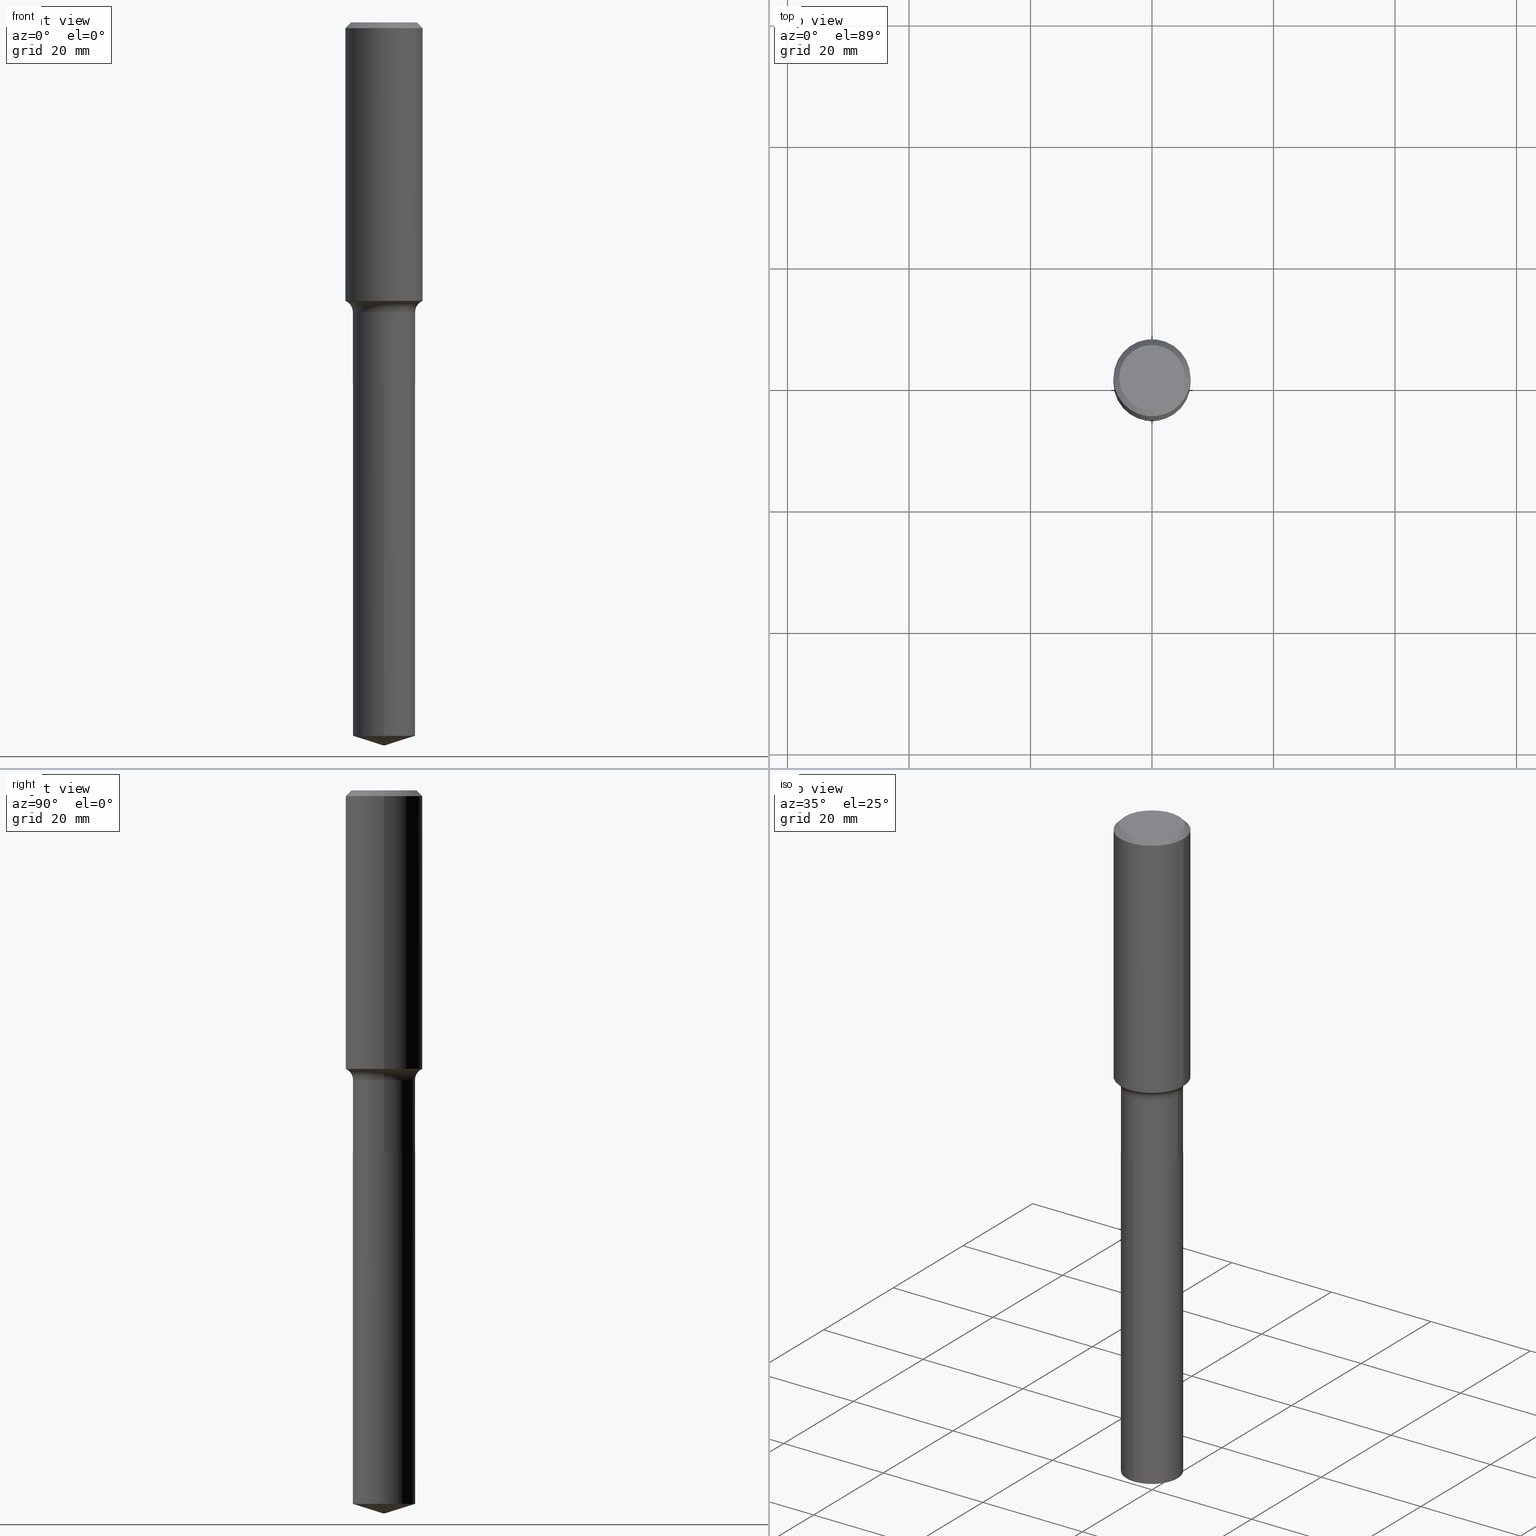
[diagram: canonical four-view strip — front | top / right | iso, engineering-drawing reading convention]
A machine part, canonical four-view strip (front | top / right | iso — engineering-drawing reading convention). The complete STEP part file that produces these views, byte-faithful:
ISO-10303-21;
HEADER;
FILE_DESCRIPTION (( 'STEP AP203' ),
    '1' );
FILE_NAME ('52353.STEP',
    '2024-04-19T13:53:20',
    ( '' ),
    ( '' ),
    'SwSTEP 2.0',
    'SolidWorks 2023',
    '' );
FILE_SCHEMA (( 'CONFIG_CONTROL_DESIGN' ));
ENDSEC;

DATA;
#1 = ORIENTED_EDGE ( 'NONE', *, *, #249, .F. ) ;
#2 = EDGE_LOOP ( 'NONE', ( #298, #86, #405, #138 ) ) ;
#3 = CIRCLE ( 'NONE', #341, 0.07800000000000009703 ) ;
#4 = APPROVAL_DATE_TIME ( #409, #157 ) ;
#5 = EDGE_LOOP ( 'NONE', ( #305, #380, #158, #403 ) ) ;
#6 = VECTOR ( 'NONE', #204, 39.37007874015748143 ) ;
#7 = CARTESIAN_POINT ( 'NONE',  ( -0.2500000000000002776, -4.525417829077741609E-15, -1.804900000000000171 ) ) ;
#8 = ADVANCED_FACE ( 'NONE', ( #311 ), #357, .T. ) ;
#9 = DIRECTION ( 'NONE',  ( -2.445468806185136597E-29, 3.491481338843145583E-15, 1.000000000000000000 ) ) ;
#10 = FACE_OUTER_BOUND ( 'NONE', #68, .T. ) ;
#11 = CARTESIAN_POINT ( 'NONE',  ( -8.480400482500368832E-28, 1.211095576396062497E-13, 34.68257874015748143 ) ) ;
#12 = CIRCLE ( 'NONE', #207, 0.2500000000000000000 ) ;
#13 = CIRCLE ( 'NONE', #89, 0.2020000000000000129 ) ;
#14 = ADVANCED_FACE ( 'NONE', ( #10 ), #444, .F. ) ;
#15 = DIRECTION ( 'NONE',  ( -6.982962677686266711E-15, -1.000000000000000000, 4.057199990590489741E-15 ) ) ;
#16 = CARTESIAN_POINT ( 'NONE',  ( 4.589900402328883540E-29, -6.553161324874701209E-15, -1.876900000000000457 ) ) ;
#17 = APPLICATION_PROTOCOL_DEFINITION ( 'international standard', 'config_control_design', 1994, #154 ) ;
#18 = DIRECTION ( 'NONE',  ( -1.000000000000000000, 7.105427357601001859E-15, 0.000000000000000000 ) ) ;
#19 = CARTESIAN_POINT ( 'NONE',  ( -8.480400482500368832E-28, 1.211095576396062497E-13, 34.68257874015748143 ) ) ;
#20 = DIRECTION ( 'NONE',  ( -6.982962677686266711E-15, -1.000000000000000000, 3.491481338843145583E-15 ) ) ;
#21 = CARTESIAN_POINT ( 'NONE',  ( -0.2500000000000001110, 1.776356839400251254E-15, -1.229733772563727006E-29 ) ) ;
#22 = ADVANCED_FACE ( 'NONE', ( #57 ), #455, .T. ) ;
#23 = CONICAL_SURFACE ( 'NONE', #143, 0.2500000000000000000, 0.7853981633974447263 ) ;
#24 = VERTEX_POINT ( 'NONE', #342 ) ;
#25 = DIRECTION ( 'NONE',  ( -6.982962677686265922E-15, -1.000000000000000000, 3.500519750498723365E-15 ) ) ;
#26 = PERSON_AND_ORGANIZATION ( #489, #332 ) ;
#27 = DIRECTION ( 'NONE',  ( 2.445167391470956759E-29, -3.491912981869310668E-15, -1.000000000000000000 ) ) ;
#28 = CARTESIAN_POINT ( 'NONE',  ( 5.726065209682497413E-29, -8.175303554901225434E-15, -2.341500000000000359 ) ) ;
#29 = ORIENTED_EDGE ( 'NONE', *, *, #274, .F. ) ;
#30 = PERSON_AND_ORGANIZATION_ROLE ( 'creator' ) ;
#31 = CARTESIAN_POINT ( 'NONE',  ( 0.2015000000000000124, -9.582370534455009376E-15, -2.341500000000000359 ) ) ;
#32 = CARTESIAN_POINT ( 'NONE',  ( 4.589900402328883540E-29, -6.553161324874701209E-15, -1.876900000000000457 ) ) ;
#33 =( LENGTH_UNIT ( ) NAMED_UNIT ( * ) SI_UNIT ( $, .METRE. ) );
#34 = EDGE_LOOP ( 'NONE', ( #394, #201, #100, #264 ) ) ;
#35 = CIRCLE ( 'NONE', #308, 0.2020000000000000129 ) ;
#36 = EDGE_CURVE ( 'NONE', #360, #81, #174, .T. ) ;
#37 = DIRECTION ( 'NONE',  ( -2.445468806185136597E-29, 3.491481338843145583E-15, 1.000000000000000000 ) ) ;
#38 = ADVANCED_FACE ( 'NONE', ( #203 ), #278, .F. ) ;
#39 = VERTEX_POINT ( 'NONE', #485 ) ;
#40 = VECTOR ( 'NONE', #317, 39.37007874015747433 ) ;
#41 = VECTOR ( 'NONE', #146, 39.37007874015748143 ) ;
#42 = EDGE_LOOP ( 'NONE', ( #259, #232, #339, #368 ) ) ;
#43 = EDGE_CURVE ( 'NONE', #360, #268, #3, .T. ) ;
#44 = DIRECTION ( 'NONE',  ( 1.000000000000000000, -6.982962677686269866E-15, 0.000000000000000000 ) ) ;
#45 = CIRCLE ( 'NONE', #306, 0.2500000000000000000 ) ;
#46 = EDGE_LOOP ( 'NONE', ( #177, #415, #224, #490 ) ) ;
#47 = CC_DESIGN_DATE_AND_TIME_ASSIGNMENT ( #364, #387, ( #122 ) ) ;
#48 = CARTESIAN_POINT ( 'NONE',  ( 9.170508023194327749E-31, -1.309305502066188813E-16, -0.03750000000000026923 ) ) ;
#49 = LINE ( 'NONE', #250, #64 ) ;
#50 = PRODUCT ( '52353', '52353', '', ( #130 ) ) ;
#51 = CIRCLE ( 'NONE', #331, 0.2124999999999999944 ) ;
#52 = VECTOR ( 'NONE', #223, 39.37007874015748143 ) ;
#53 = FACE_OUTER_BOUND ( 'NONE', #442, .T. ) ;
#54 = CARTESIAN_POINT ( 'NONE',  ( 0.2500000000000002776, -8.047515337899561907E-15, -1.804900000000000171 ) ) ;
#55 = FACE_OUTER_BOUND ( 'NONE', #42, .T. ) ;
#56 = COORDINATED_UNIVERSAL_TIME_OFFSET ( 5, 0, .BEHIND. ) ;
#57 = FACE_OUTER_BOUND ( 'NONE', #74, .T. ) ;
#58 = EDGE_CURVE ( 'NONE', #181, #70, #482, .T. ) ;
#59 = ORIENTED_EDGE ( 'NONE', *, *, #369, .F. ) ;
#60 = DIRECTION ( 'NONE',  ( 1.000000000000000000, -6.982962677686266711E-15, 4.876376119033268190E-29 ) ) ;
#61 = APPROVAL_DATE_TIME ( #295, #155 ) ;
#62 = LINE ( 'NONE', #206, #102 ) ;
#63 = CARTESIAN_POINT ( 'NONE',  ( 4.413826648283553199E-29, -6.301774668477994440E-15, -1.804900000000000171 ) ) ;
#64 = VECTOR ( 'NONE', #247, 39.37007874015748143 ) ;
#65 = ORIENTED_EDGE ( 'NONE', *, *, #270, .T. ) ;
#66 = AXIS2_PLACEMENT_3D ( 'NONE', #398, #217, #180 ) ;
#67 = CARTESIAN_POINT ( 'NONE',  ( -0.2500000000000000000, 1.614810119214947796E-15, -0.03750000000000026923 ) ) ;
#68 = EDGE_LOOP ( 'NONE', ( #272, #234 ) ) ;
#69 = PERSON_AND_ORGANIZATION_ROLE ( 'classification_officer' ) ;
#70 = VERTEX_POINT ( 'NONE', #179 ) ;
#71 = CARTESIAN_POINT ( 'NONE',  ( 9.170508023194327749E-31, -1.309305502066188813E-16, -0.03750000000000026923 ) ) ;
#72 = CARTESIAN_POINT ( 'NONE',  ( 1.130669433001165338E-28, -1.614493023168768447E-14, -4.623809644646446060 ) ) ;
#73 = DIMENSIONAL_EXPONENTS ( 1.000000000000000000, 0.000000000000000000, 0.000000000000000000, 0.000000000000000000, 0.000000000000000000, 0.000000000000000000, 0.000000000000000000 ) ;
#74 = EDGE_LOOP ( 'NONE', ( #117, #328, #159, #226 ) ) ;
#75 = AXIS2_PLACEMENT_3D ( 'NONE', #63, #349, #293 ) ;
#76 = ORIENTED_EDGE ( 'NONE', *, *, #369, .T. ) ;
#77 = EDGE_CURVE ( 'NONE', #399, #268, #441, .T. ) ;
#78 = VECTOR ( 'NONE', #347, 39.37007874015748143 ) ;
#79 = AXIS2_PLACEMENT_3D ( 'NONE', #438, #400, #98 ) ;
#80 = CARTESIAN_POINT ( 'NONE',  ( 5.724842475279405733E-29, -8.173557814231804720E-15, -2.341000000000000192 ) ) ;
#81 = VERTEX_POINT ( 'NONE', #7 ) ;
#82 = CARTESIAN_POINT ( 'NONE',  ( 0.2124999999999999944, -1.651955437087975937E-15, 6.505936120481282700E-18 ) ) ;
#83 = DIRECTION ( 'NONE',  ( -2.445167391470956759E-29, 3.491912981869311063E-15, 1.000000000000000000 ) ) ;
#84 = EDGE_CURVE ( 'NONE', #399, #381, #300, .T. ) ;
#85 = CARTESIAN_POINT ( 'NONE',  ( 0.2500000000000000000, -1.876671219628185756E-15, -0.03750000000000026923 ) ) ;
#86 = ORIENTED_EDGE ( 'NONE', *, *, #463, .T. ) ;
#87 = DATE_AND_TIME ( #145, #280 ) ;
#88 = AXIS2_PLACEMENT_3D ( 'NONE', #389, #169, #99 ) ;
#89 = AXIS2_PLACEMENT_3D ( 'NONE', #205, #163, #358 ) ;
#90 = DIRECTION ( 'NONE',  ( -2.445167391470956759E-29, 3.491912981869311063E-15, 1.000000000000000000 ) ) ;
#91 = EDGE_CURVE ( 'NONE', #360, #244, #97, .T. ) ;
#92 = DIRECTION ( 'NONE',  ( -2.445468806185136597E-29, 3.491481338843145583E-15, 1.000000000000000000 ) ) ;
#93 = CARTESIAN_POINT ( 'NONE',  ( 0.000000000000000000, 0.000000000000000000, 0.000000000000000000 ) ) ;
#94 = ORIENTED_EDGE ( 'NONE', *, *, #345, .T. ) ;
#95 = CARTESIAN_POINT ( 'NONE',  ( -1.591006383764330940E-46, 2.271535455632768948E-32, 6.505936120470318766E-18 ) ) ;
#96 = COORDINATED_UNIVERSAL_TIME_OFFSET ( 5, 0, .BEHIND. ) ;
#97 = LINE ( 'NONE', #466, #373 ) ;
#98 = DIRECTION ( 'NONE',  ( -1.000000000000000000, 6.982962677686266711E-15, 0.000000000000000000 ) ) ;
#99 = DIRECTION ( 'NONE',  ( 1.000000000000000000, -6.982962677686266711E-15, 0.000000000000000000 ) ) ;
#100 = ORIENTED_EDGE ( 'NONE', *, *, #182, .T. ) ;
#101 = DIRECTION ( 'NONE',  ( -6.659769872151628144E-15, -0.9537169507482261555, 0.3007057995042753396 ) ) ;
#102 = VECTOR ( 'NONE', #126, 39.37007874015748143 ) ;
#103 = SECURITY_CLASSIFICATION_LEVEL ( 'unclassified' ) ;
#104 = PRODUCT_DEFINITION ( 'UNKNOWN', '', #188, #237 ) ;
#105 = ORIENTED_EDGE ( 'NONE', *, *, #351, .T. ) ;
#106 = AXIS2_PLACEMENT_3D ( 'NONE', #437, #116, #131 ) ;
#107 = VERTEX_POINT ( 'NONE', #261 ) ;
#108 = CARTESIAN_POINT ( 'NONE',  ( -0.2019999999999999851, 1.435296326235402270E-15, -9.936248882314910004E-30 ) ) ;
#109 = AXIS2_PLACEMENT_3D ( 'NONE', #397, #9, #44 ) ;
#110 = EDGE_CURVE ( 'NONE', #381, #399, #152, .T. ) ;
#111 = AXIS2_PLACEMENT_3D ( 'NONE', #93, #285, #175 ) ;
#112 = CARTESIAN_POINT ( 'NONE',  ( -0.2500000000000000000, -1.439995769942055506E-15, -0.03750000000000026923 ) ) ;
#113 = EDGE_LOOP ( 'NONE', ( #59, #105, #462, #29 ) ) ;
#114 = CIRCLE ( 'NONE', #121, 0.2015000000000000124 ) ;
#115 = EDGE_CURVE ( 'NONE', #487, #399, #62, .T. ) ;
#116 = DIRECTION ( 'NONE',  ( -2.445468806185136597E-29, 3.491481338843145583E-15, 1.000000000000000000 ) ) ;
#117 = ORIENTED_EDGE ( 'NONE', *, *, #434, .T. ) ;
#118 = DIRECTION ( 'NONE',  ( -2.445468806185136877E-29, 3.491481338843145188E-15, 1.000000000000000000 ) ) ;
#119 = CARTESIAN_POINT ( 'NONE',  ( 5.726065209682497413E-29, -8.175303554901225434E-15, -2.341500000000000359 ) ) ;
#120 = ADVANCED_FACE ( 'NONE', ( #320 ), #314, .F. ) ;
#121 = AXIS2_PLACEMENT_3D ( 'NONE', #419, #151, #194 ) ;
#122 = SECURITY_CLASSIFICATION ( '', '', #103 ) ;
#123 = ORIENTED_EDGE ( 'NONE', *, *, #290, .T. ) ;
#124 = DIRECTION ( 'NONE',  ( 1.000000000000000000, -6.982962677686267499E-15, 0.000000000000000000 ) ) ;
#125 = LINE ( 'NONE', #21, #193 ) ;
#126 = DIRECTION ( 'NONE',  ( 0.7071067811866199593, -2.468850131083015945E-15, 0.7071067811864750752 ) ) ;
#127 = DIRECTION ( 'NONE',  ( 7.105427357601001859E-15, 1.000000000000000000, -3.491481338843145583E-15 ) ) ;
#128 = ADVANCED_FACE ( 'NONE', ( #55 ), #245, .T. ) ;
#129 = FACE_OUTER_BOUND ( 'NONE', #5, .T. ) ;
#130 = MECHANICAL_CONTEXT ( 'NONE', #452, 'mechanical' ) ;
#131 = DIRECTION ( 'NONE',  ( 1.000000000000000000, -6.982962677686266711E-15, 4.876176775795935793E-29 ) ) ;
#132 = CLOSED_SHELL ( 'NONE', ( #319, #229, #202, #379, #38 ) ) ;
#133 = CIRCLE ( 'NONE', #200, 0.2019999999999999574 ) ;
#134 = DIRECTION ( 'NONE',  ( 2.445468806185136597E-29, -3.491481338843145583E-15, -1.000000000000000000 ) ) ;
#135 = PERSON_AND_ORGANIZATION ( #489, #332 ) ;
#136 = CARTESIAN_POINT ( 'NONE',  ( 1.146172214752011243E-28, -1.636834210251239504E-14, -4.687500000000000000 ) ) ;
#137 = FACE_OUTER_BOUND ( 'NONE', #231, .T. ) ;
#138 = ORIENTED_EDGE ( 'NONE', *, *, #422, .F. ) ;
#139 = APPROVAL_STATUS ( 'not_yet_approved' ) ;
#140 = APPROVAL ( #443, 'UNSPECIFIED' ) ;
#141 = ORIENTED_EDGE ( 'NONE', *, *, #84, .T. ) ;
#142 = ADVANCED_FACE ( 'NONE', ( #129 ), #479, .T. ) ;
#143 = AXIS2_PLACEMENT_3D ( 'NONE', #171, #134, #426 ) ;
#144 = ORIENTED_EDGE ( 'NONE', *, *, #422, .T. ) ;
#145 = CALENDAR_DATE ( 2024, 19, 4 ) ;
#146 = DIRECTION ( 'NONE',  ( -0.7071067811866199593, 7.493145998870616062E-15, 0.7071067811864750752 ) ) ;
#147 = PRODUCT_RELATED_PRODUCT_CATEGORY ( 'detail', '', ( #50 ) ) ;
#148 = ORIENTED_EDGE ( 'NONE', *, *, #170, .F. ) ;
#149 = LENGTH_MEASURE_WITH_UNIT ( LENGTH_MEASURE( 0.02539999999999999897 ), #33 );
#150 = VERTEX_POINT ( 'NONE', #395 ) ;
#151 = DIRECTION ( 'NONE',  ( -2.445468806185136597E-29, 3.491481338843145583E-15, 1.000000000000000000 ) ) ;
#152 = CIRCLE ( 'NONE', #376, 0.2020000000000000129 ) ;
#153 = EDGE_LOOP ( 'NONE', ( #461, #465 ) ) ;
#154 = APPLICATION_CONTEXT ( 'configuration controlled 3d designs of mechanical parts and assemblies' ) ;
#155 = APPROVAL ( #139, 'UNSPECIFIED' ) ;
#156 = CIRCLE ( 'NONE', #88, 0.2019999999999999574 ) ;
#157 = APPROVAL ( #303, 'UNSPECIFIED' ) ;
#158 = ORIENTED_EDGE ( 'NONE', *, *, #115, .T. ) ;
#159 = ORIENTED_EDGE ( 'NONE', *, *, #84, .F. ) ;
#160 = CARTESIAN_POINT ( 'NONE',  ( 5.726065209682497413E-29, -8.175303554901225434E-15, -2.341500000000000359 ) ) ;
#161 = ORIENTED_EDGE ( 'NONE', *, *, #351, .F. ) ;
#162 = DIRECTION ( 'NONE',  ( -2.445167391470956759E-29, 3.491912981869311063E-15, 1.000000000000000000 ) ) ;
#163 = DIRECTION ( 'NONE',  ( -2.445167391470956759E-29, 3.491912981869311063E-15, 1.000000000000000000 ) ) ;
#164 = CARTESIAN_POINT ( 'NONE',  ( 5.726065209682497413E-29, -8.175303554901225434E-15, -2.341500000000000359 ) ) ;
#165 = CARTESIAN_POINT ( 'NONE',  ( 0.2500000000000000000, -1.846055049649501969E-15, -0.03750000000000026923 ) ) ;
#166 = DIRECTION ( 'NONE',  ( -2.445468806185136877E-29, 3.491481338843145188E-15, 1.000000000000000000 ) ) ;
#167 = DIRECTION ( 'NONE',  ( -2.445468806185136597E-29, 3.491481338843145583E-15, 1.000000000000000000 ) ) ;
#168 = PERSON_AND_ORGANIZATION ( #489, #332 ) ;
#169 = DIRECTION ( 'NONE',  ( -2.445468806185136597E-29, 3.491481338843145583E-15, 1.000000000000000000 ) ) ;
#170 = EDGE_CURVE ( 'NONE', #239, #244, #382, .T. ) ;
#171 = CARTESIAN_POINT ( 'NONE',  ( 9.170508023194327749E-31, -1.309305502066188813E-16, -0.03750000000000026923 ) ) ;
#172 = CARTESIAN_POINT ( 'NONE',  ( 0.2800000000000000266, -8.508390874626856204E-15, -1.876900000000000457 ) ) ;
#173 = DIRECTION ( 'NONE',  ( -2.445167391470956759E-29, 3.491912981869311063E-15, 1.000000000000000000 ) ) ;
#174 = CIRCLE ( 'NONE', #424, 0.2500000000000002220 ) ;
#175 = DIRECTION ( 'NONE',  ( 1.000000000000000000, -6.982962677686266711E-15, 4.876176775795935793E-29 ) ) ;
#176 = AXIS2_PLACEMENT_3D ( 'NONE', #119, #167, #124 ) ;
#177 = ORIENTED_EDGE ( 'NONE', *, *, #345, .F. ) ;
#178 = FACE_OUTER_BOUND ( 'NONE', #34, .T. ) ;
#179 = CARTESIAN_POINT ( 'NONE',  ( -1.410558460892513155E-15, -0.2020000000000162499, -4.623809644646445172 ) ) ;
#180 = DIRECTION ( 'NONE',  ( 1.000000000000000000, -6.982962677686267499E-15, 4.876176775795936353E-29 ) ) ;
#181 = VERTEX_POINT ( 'NONE', #352 ) ;
#182 = EDGE_CURVE ( 'NONE', #244, #307, #12, .T. ) ;
#183 = PERSON_AND_ORGANIZATION ( #489, #332 ) ;
#184 = DIRECTION ( 'NONE',  ( 1.000000000000000000, -6.982962677686267499E-15, 0.000000000000000000 ) ) ;
#185 = AXIS2_PLACEMENT_3D ( 'NONE', #346, #440, #208 ) ;
#186 = AXIS2_PLACEMENT_3D ( 'NONE', #160, #27, #354 ) ;
#187 = ORIENTED_EDGE ( 'NONE', *, *, #182, .F. ) ;
#188 = PRODUCT_DEFINITION_FORMATION_WITH_SPECIFIED_SOURCE ( 'ANY', '', #50, .NOT_KNOWN. ) ;
#189 = EDGE_CURVE ( 'NONE', #24, #329, #467, .T. ) ;
#190 = DIRECTION ( 'NONE',  ( 1.000000000000000000, -6.982962677686268288E-15, 4.883557194083113462E-29 ) ) ;
#191 =( CONVERSION_BASED_UNIT ( 'INCH', #149 ) LENGTH_UNIT ( ) NAMED_UNIT ( #73 ) );
#192 = ORIENTED_EDGE ( 'NONE', *, *, #363, .F. ) ;
#193 = VECTOR ( 'NONE', #166, 39.37007874015748143 ) ;
#194 = DIRECTION ( 'NONE',  ( 1.000000000000000000, -6.982962677686267499E-15, 0.000000000000000000 ) ) ;
#195 = EDGE_LOOP ( 'NONE', ( #141, #123, #192, #371 ) ) ;
#196 = EDGE_CURVE ( 'NONE', #181, #24, #430, .T. ) ;
#197 = ORIENTED_EDGE ( 'NONE', *, *, #196, .F. ) ;
#198 = DIRECTION ( 'NONE',  ( -2.438088387897960049E-29, 3.491481338843145188E-15, 1.000000000000000000 ) ) ;
#199 = ORIENTED_EDGE ( 'NONE', *, *, #484, .T. ) ;
#200 = AXIS2_PLACEMENT_3D ( 'NONE', #297, #469, #476 ) ;
#201 = ORIENTED_EDGE ( 'NONE', *, *, #170, .T. ) ;
#202 = ADVANCED_FACE ( 'NONE', ( #286 ), #412, .T. ) ;
#203 = FACE_OUTER_BOUND ( 'NONE', #451, .T. ) ;
#204 = DIRECTION ( 'NONE',  ( -2.445167391470956759E-29, 3.491912981869310668E-15, 1.000000000000000000 ) ) ;
#205 = CARTESIAN_POINT ( 'NONE',  ( 5.726065209682497413E-29, -8.175303554901225434E-15, -2.341500000000000359 ) ) ;
#206 = CARTESIAN_POINT ( 'NONE',  ( 0.2015000000000000124, -9.582370534455009376E-15, -2.341500000000000359 ) ) ;
#207 = AXIS2_PLACEMENT_3D ( 'NONE', #48, #473, #383 ) ;
#208 = DIRECTION ( 'NONE',  ( 1.000000000000000000, -6.982962677686267499E-15, 4.876176775795936353E-29 ) ) ;
#209 = EDGE_CURVE ( 'NONE', #70, #39, #49, .T. ) ;
#210 = CARTESIAN_POINT ( 'NONE',  ( -0.2800000000000000266, -4.563641664746420500E-15, -1.876900000000000457 ) ) ;
#211 = CARTESIAN_POINT ( 'NONE',  ( -7.955031918821654702E-47, 1.135767727816384474E-32, 3.252968060235159383E-18 ) ) ;
#212 = DIRECTION ( 'NONE',  ( 1.000000000000000000, -6.982962677686264344E-15, 0.000000000000000000 ) ) ;
#213 = ORIENTED_EDGE ( 'NONE', *, *, #196, .T. ) ;
#214 = CARTESIAN_POINT ( 'NONE',  ( 1.146314605003562758E-28, -1.636632071822086340E-14, -4.687500000000000000 ) ) ;
#215 = PERSON_AND_ORGANIZATION ( #489, #332 ) ;
#216 = CARTESIAN_POINT ( 'NONE',  ( -0.2015000000000000124, -6.743559942344623471E-15, -2.341500000000000359 ) ) ;
#217 = DIRECTION ( 'NONE',  ( -2.445468806185136597E-29, 3.491481338843145583E-15, 1.000000000000000000 ) ) ;
#218 = AXIS2_PLACEMENT_3D ( 'NONE', #11, #90, #256 ) ;
#219 = ADVANCED_FACE ( 'NONE', ( #390 ), #470, .F. ) ;
#220 = ORIENTED_EDGE ( 'NONE', *, *, #36, .T. ) ;
#221 = CARTESIAN_POINT ( 'NONE',  ( 5.726065209682497413E-29, -8.175303554901225434E-15, -2.341500000000000359 ) ) ;
#222 =( NAMED_UNIT ( * ) SI_UNIT ( $, .STERADIAN. ) SOLID_ANGLE_UNIT ( ) );
#223 = DIRECTION ( 'NONE',  ( -0.7071067811865450192, 2.468850131082230634E-15, -0.7071067811865500152 ) ) ;
#224 = ORIENTED_EDGE ( 'NONE', *, *, #43, .T. ) ;
#225 = COORDINATED_UNIVERSAL_TIME_OFFSET ( 5, 0, .BEHIND. ) ;
#226 = ORIENTED_EDGE ( 'NONE', *, *, #115, .F. ) ;
#227 = DIRECTION ( 'NONE',  ( 1.000000000000000000, -6.982962677686266711E-15, 0.000000000000000000 ) ) ;
#228 = CALENDAR_DATE ( 2024, 19, 4 ) ;
#229 = ADVANCED_FACE ( 'NONE', ( #53 ), #348, .T. ) ;
#230 = AXIS2_PLACEMENT_3D ( 'NONE', #210, #127, #18 ) ;
#231 = EDGE_LOOP ( 'NONE', ( #266, #483, #344, #421 ) ) ;
#232 = ORIENTED_EDGE ( 'NONE', *, *, #110, .T. ) ;
#233 = CARTESIAN_POINT ( 'NONE',  ( 0.2019999999999999574, -7.963719785767326580E-15, -1.876900000000000457 ) ) ;
#234 = ORIENTED_EDGE ( 'NONE', *, *, #304, .F. ) ;
#235 = ADVANCED_FACE ( 'NONE', ( #178 ), #23, .T. ) ;
#236 = AXIS2_PLACEMENT_3D ( 'NONE', #392, #486, #184 ) ;
#237 = DESIGN_CONTEXT ( 'detailed design', #154, 'design' ) ;
#238 = ORIENTED_EDGE ( 'NONE', *, *, #58, .T. ) ;
#239 = VERTEX_POINT ( 'NONE', #82 ) ;
#240 = AXIS2_PLACEMENT_3D ( 'NONE', #243, #92, #423 ) ;
#241 = AXIS2_PLACEMENT_3D ( 'NONE', #19, #162, #25 ) ;
#242 = CIRCLE ( 'NONE', #309, 0.2124999999999999944 ) ;
#243 = CARTESIAN_POINT ( 'NONE',  ( 5.726065209682497413E-29, -8.175303554901225434E-15, -2.341500000000000359 ) ) ;
#244 = VERTEX_POINT ( 'NONE', #85 ) ;
#245 = CYLINDRICAL_SURFACE ( 'NONE', #185, 0.2019999999999999851 ) ;
#246 = CC_DESIGN_PERSON_AND_ORGANIZATION_ASSIGNMENT ( #267, #69, ( #122 ) ) ;
#247 = DIRECTION ( 'NONE',  ( -2.445167391470956759E-29, 3.491912981869310668E-15, 1.000000000000000000 ) ) ;
#248 = CYLINDRICAL_SURFACE ( 'NONE', #425, 0.2020000000000000129 ) ;
#249 = EDGE_CURVE ( 'NONE', #407, #239, #51, .T. ) ;
#250 = CARTESIAN_POINT ( 'NONE',  ( -1.410558460892568573E-15, -0.2020000000000081730, -2.341499999999999471 ) ) ;
#251 = CALENDAR_DATE ( 2024, 19, 4 ) ;
#252 = VECTOR ( 'NONE', #432, 39.37007874015748143 ) ;
#253 = LOCAL_TIME ( 9, 53, 20.00000000000000000, #269 ) ;
#254 = CYLINDRICAL_SURFACE ( 'NONE', #367, 0.2020000000000000129 ) ;
#255 = LOCAL_TIME ( 9, 53, 20.00000000000000000, #96 ) ;
#256 = DIRECTION ( 'NONE',  ( -6.982962677686265922E-15, -1.000000000000000000, 3.500519750498723365E-15 ) ) ;
#257 = PERSON_AND_ORGANIZATION_ROLE ( 'design_owner' ) ;
#258 = CC_DESIGN_DATE_AND_TIME_ASSIGNMENT ( #491, #391, ( #104 ) ) ;
#259 = ORIENTED_EDGE ( 'NONE', *, *, #290, .F. ) ;
#260 = DIRECTION ( 'NONE',  ( -2.445468806185136597E-29, 3.491481338843145583E-15, 1.000000000000000000 ) ) ;
#261 = CARTESIAN_POINT ( 'NONE',  ( -0.2015000000000000124, -6.740910715170513059E-15, -2.341500000000000359 ) ) ;
#262 = ADVANCED_FACE ( 'NONE', ( #313 ), #416, .F. ) ;
#263 = DIRECTION ( 'NONE',  ( -2.445167391470956759E-29, 3.491912981869311063E-15, 1.000000000000000000 ) ) ;
#264 = ORIENTED_EDGE ( 'NONE', *, *, #484, .F. ) ;
#265 = AXIS2_PLACEMENT_3D ( 'NONE', #474, #361, #325 ) ;
#266 = ORIENTED_EDGE ( 'NONE', *, *, #315, .T. ) ;
#267 = PERSON_AND_ORGANIZATION ( #489, #332 ) ;
#268 = VERTEX_POINT ( 'NONE', #233 ) ;
#269 = COORDINATED_UNIVERSAL_TIME_OFFSET ( 5, 0, .BEHIND. ) ;
#270 = EDGE_CURVE ( 'NONE', #39, #329, #458, .T. ) ;
#271 =( GEOMETRIC_REPRESENTATION_CONTEXT ( 3 ) GLOBAL_UNCERTAINTY_ASSIGNED_CONTEXT ( ( #353 ) ) GLOBAL_UNIT_ASSIGNED_CONTEXT ( ( #191, #350, #222 ) ) REPRESENTATION_CONTEXT ( 'NONE', 'WORKASPACE' ) );
#272 = ORIENTED_EDGE ( 'NONE', *, *, #434, .F. ) ;
#273 = ORIENTED_EDGE ( 'NONE', *, *, #91, .F. ) ;
#274 = EDGE_CURVE ( 'NONE', #307, #244, #45, .T. ) ;
#275 = CARTESIAN_POINT ( 'NONE',  ( 4.413826648283553199E-29, -6.301774668477994440E-15, -1.804900000000000171 ) ) ;
#276 = MANIFOLD_SOLID_BREP ( 'Body-Move/Copy2[1]', #132 ) ;
#277 = DIRECTION ( 'NONE',  ( -2.445468806185136597E-29, 3.491481338843145583E-15, 1.000000000000000000 ) ) ;
#278 = PLANE ( 'NONE',  #186 ) ;
#279 = DIRECTION ( 'NONE',  ( 1.000000000000000000, -6.982962677686268288E-15, 4.883557194083113462E-29 ) ) ;
#280 = LOCAL_TIME ( 9, 53, 20.00000000000000000, #56 ) ;
#281 = CARTESIAN_POINT ( 'NONE',  ( 1.435296326235459659E-15, 0.2019999999999918527, -2.341500000000000803 ) ) ;
#282 = FACE_OUTER_BOUND ( 'NONE', #2, .T. ) ;
#283 = MANIFOLD_SOLID_BREP ( 'Body-Move/Copy2[2]', #411 ) ;
#284 = DIRECTION ( 'NONE',  ( -2.445468806185136597E-29, 3.491481338843145583E-15, 1.000000000000000000 ) ) ;
#285 = DIRECTION ( 'NONE',  ( -2.445468806185136597E-29, 3.491481338843145583E-15, 1.000000000000000000 ) ) ;
#286 = FACE_OUTER_BOUND ( 'NONE', #372, .T. ) ;
#287 = CIRCLE ( 'NONE', #75, 0.2500000000000002220 ) ;
#288 = LINE ( 'NONE', #67, #52 ) ;
#289 = CARTESIAN_POINT ( 'NONE',  ( 0.2020000000000000129, -9.584116275124431668E-15, -2.341000000000000192 ) ) ;
#290 = EDGE_CURVE ( 'NONE', #381, #150, #333, .T. ) ;
#291 = APPROVAL_ROLE ( '' ) ;
#292 = DIRECTION ( 'NONE',  ( -2.445468806185136597E-29, 3.491481338843145583E-15, 1.000000000000000000 ) ) ;
#293 = DIRECTION ( 'NONE',  ( 1.000000000000000000, -6.982962677686264344E-15, 0.000000000000000000 ) ) ;
#294 = EDGE_LOOP ( 'NONE', ( #161, #94, #475, #418 ) ) ;
#295 = DATE_AND_TIME ( #396, #255 ) ;
#296 = LINE ( 'NONE', #216, #41 ) ;
#297 = CARTESIAN_POINT ( 'NONE',  ( 4.589900402328883540E-29, -6.553161324874701209E-15, -1.876900000000000457 ) ) ;
#298 = ORIENTED_EDGE ( 'NONE', *, *, #189, .F. ) ;
#299 = PERSON_AND_ORGANIZATION ( #489, #332 ) ;
#300 = CIRCLE ( 'NONE', #109, 0.2020000000000000129 ) ;
#301 = CC_DESIGN_APPROVAL ( #157, ( #122 ) ) ;
#302 = ORIENTED_EDGE ( 'NONE', *, *, #463, .F. ) ;
#303 = APPROVAL_STATUS ( 'not_yet_approved' ) ;
#304 = EDGE_CURVE ( 'NONE', #107, #487, #114, .T. ) ;
#305 = ORIENTED_EDGE ( 'NONE', *, *, #445, .F. ) ;
#306 = AXIS2_PLACEMENT_3D ( 'NONE', #71, #37, #227 ) ;
#307 = VERTEX_POINT ( 'NONE', #112 ) ;
#308 = AXIS2_PLACEMENT_3D ( 'NONE', #335, #83, #384 ) ;
#309 = AXIS2_PLACEMENT_3D ( 'NONE', #454, #277, #428 ) ;
#310 = ORIENTED_EDGE ( 'NONE', *, *, #58, .F. ) ;
#311 = FACE_OUTER_BOUND ( 'NONE', #370, .T. ) ;
#312 = CARTESIAN_POINT ( 'NONE',  ( 5.726065209682497413E-29, -8.175303554901225434E-15, -2.341500000000000359 ) ) ;
#313 = FACE_OUTER_BOUND ( 'NONE', #294, .T. ) ;
#314 = TOROIDAL_SURFACE ( 'NONE', #321, 0.2800000000000000266, 0.07800000000000009703 ) ;
#315 = EDGE_CURVE ( 'NONE', #70, #24, #35, .T. ) ;
#316 = APPROVAL_PERSON_ORGANIZATION ( #453, #157, #338 ) ;
#317 = DIRECTION ( 'NONE',  ( 6.776566513254254982E-15, 0.9537169507482283759, 0.3007057995042687337 ) ) ;
#318 = CARTESIAN_POINT ( 'NONE',  ( -0.2124999999999999944, 1.549344844111639638E-15, 6.505936120459713055E-18 ) ) ;
#319 = ADVANCED_FACE ( 'NONE', ( #137 ), #254, .T. ) ;
#320 = FACE_OUTER_BOUND ( 'NONE', #46, .T. ) ;
#321 = AXIS2_PLACEMENT_3D ( 'NONE', #16, #284, #279 ) ;
#322 = DIRECTION ( 'NONE',  ( 1.000000000000000000, -6.982962677686274599E-15, 0.000000000000000000 ) ) ;
#323 = LOCAL_TIME ( 9, 53, 20.00000000000000000, #330 ) ;
#324 = CYLINDRICAL_SURFACE ( 'NONE', #66, 0.2019999999999999851 ) ;
#325 = DIRECTION ( 'NONE',  ( 1.000000000000000000, 0.000000000000000000, 0.000000000000000000 ) ) ;
#326 = ORIENTED_EDGE ( 'NONE', *, *, #315, .F. ) ;
#327 = FACE_OUTER_BOUND ( 'NONE', #195, .T. ) ;
#328 = ORIENTED_EDGE ( 'NONE', *, *, #445, .T. ) ;
#329 = VERTEX_POINT ( 'NONE', #359 ) ;
#330 = COORDINATED_UNIVERSAL_TIME_OFFSET ( 5, 0, .BEHIND. ) ;
#331 = AXIS2_PLACEMENT_3D ( 'NONE', #95, #260, #60 ) ;
#332 = ORGANIZATION ( 'UNSPECIFIED', 'UNSPECIFIED', '' ) ;
#333 = LINE ( 'NONE', #108, #252 ) ;
#334 = EDGE_CURVE ( 'NONE', #150, #268, #156, .T. ) ;
#335 = CARTESIAN_POINT ( 'NONE',  ( 1.130669433001165338E-28, -1.614493023168768447E-14, -4.623809644646446060 ) ) ;
#336 = AXIS2_PLACEMENT_3D ( 'NONE', #221, #446, #406 ) ;
#337 = CONICAL_SURFACE ( 'NONE', #79, 0.2500000000000000000, 0.7853981633974447263 ) ;
#338 = APPROVAL_ROLE ( '' ) ;
#339 = ORIENTED_EDGE ( 'NONE', *, *, #77, .T. ) ;
#340 = DIRECTION ( 'NONE',  ( 1.000000000000000000, -6.982962677686265922E-15, 4.876176775795935793E-29 ) ) ;
#341 = AXIS2_PLACEMENT_3D ( 'NONE', #172, #20, #322 ) ;
#342 = CARTESIAN_POINT ( 'NONE',  ( 1.435296326235515669E-15, 0.2019999999999839146, -4.623809644646446060 ) ) ;
#343 = DIRECTION ( 'NONE',  ( 1.000000000000000000, -6.982962677686269866E-15, 0.000000000000000000 ) ) ;
#344 = ORIENTED_EDGE ( 'NONE', *, *, #270, .F. ) ;
#345 = EDGE_CURVE ( 'NONE', #81, #150, #435, .T. ) ;
#346 = CARTESIAN_POINT ( 'NONE',  ( 0.000000000000000000, 0.000000000000000000, 0.000000000000000000 ) ) ;
#347 = DIRECTION ( 'NONE',  ( 0.7071067811865450192, -7.319954787623246579E-15, -0.7071067811865500152 ) ) ;
#348 = CONICAL_SURFACE ( 'NONE', #241, 124.8659371009143939, 1.265363707695890128 ) ;
#349 = DIRECTION ( 'NONE',  ( -2.445468806185136597E-29, 3.491481338843145583E-15, 1.000000000000000000 ) ) ;
#350 =( NAMED_UNIT ( * ) PLANE_ANGLE_UNIT ( ) SI_UNIT ( $, .RADIAN. ) );
#351 = EDGE_CURVE ( 'NONE', #81, #360, #287, .T. ) ;
#352 = CARTESIAN_POINT ( 'NONE',  ( 1.146172214752011019E-28, -1.636834210251239504E-14, -4.687500000000000000 ) ) ;
#353 = UNCERTAINTY_MEASURE_WITH_UNIT (LENGTH_MEASURE( 1.000000000000000082E-05 ), #191, 'distance_accuracy_value', 'NONE');
#354 = DIRECTION ( 'NONE',  ( 6.982962677686265922E-15, 1.000000000000000000, -3.491912981869310668E-15 ) ) ;
#355 = DIRECTION ( 'NONE',  ( 2.438088387897960049E-29, -3.491481338843145188E-15, -1.000000000000000000 ) ) ;
#356 = APPROVAL_DATE_TIME ( #87, #140 ) ;
#357 = CYLINDRICAL_SURFACE ( 'NONE', #106, 0.2500000000000001110 ) ;
#358 = DIRECTION ( 'NONE',  ( -6.982962677686266711E-15, -1.000000000000000000, 4.057199990590489741E-15 ) ) ;
#359 = CARTESIAN_POINT ( 'NONE',  ( 1.435296326235515866E-15, 0.2019999999999918527, -2.341500000000000803 ) ) ;
#360 = VERTEX_POINT ( 'NONE', #54 ) ;
#361 = DIRECTION ( 'NONE',  ( 0.000000000000000000, 0.000000000000000000, 1.000000000000000000 ) ) ;
#362 = FACE_OUTER_BOUND ( 'NONE', #414, .T. ) ;
#363 = EDGE_CURVE ( 'NONE', #268, #150, #133, .T. ) ;
#364 = DATE_AND_TIME ( #251, #436 ) ;
#365 = ORIENTED_EDGE ( 'NONE', *, *, #274, .T. ) ;
#366 = SHAPE_DEFINITION_REPRESENTATION ( #471, #464 ) ;
#367 = AXIS2_PLACEMENT_3D ( 'NONE', #164, #472, #15 ) ;
#368 = ORIENTED_EDGE ( 'NONE', *, *, #334, .F. ) ;
#369 = EDGE_CURVE ( 'NONE', #81, #307, #125, .T. ) ;
#370 = EDGE_LOOP ( 'NONE', ( #220, #76, #187, #273 ) ) ;
#371 = ORIENTED_EDGE ( 'NONE', *, *, #77, .F. ) ;
#372 = EDGE_LOOP ( 'NONE', ( #197, #238, #302 ) ) ;
#373 = VECTOR ( 'NONE', #118, 39.37007874015748143 ) ;
#374 = CC_DESIGN_PERSON_AND_ORGANIZATION_ASSIGNMENT ( #168, #488, ( #104 ) ) ;
#375 = DIRECTION ( 'NONE',  ( -2.445468806185136877E-29, 3.491481338843145188E-15, 1.000000000000000000 ) ) ;
#376 = AXIS2_PLACEMENT_3D ( 'NONE', #80, #378, #343 ) ;
#377 = APPROVAL_PERSON_ORGANIZATION ( #215, #140, #404 ) ;
#378 = DIRECTION ( 'NONE',  ( -2.445468806185136597E-29, 3.491481338843145583E-15, 1.000000000000000000 ) ) ;
#379 = ADVANCED_FACE ( 'NONE', ( #282 ), #248, .T. ) ;
#380 = ORIENTED_EDGE ( 'NONE', *, *, #304, .T. ) ;
#381 = VERTEX_POINT ( 'NONE', #429 ) ;
#382 = LINE ( 'NONE', #165, #78 ) ;
#383 = DIRECTION ( 'NONE',  ( 1.000000000000000000, -6.982962677686266711E-15, 0.000000000000000000 ) ) ;
#384 = DIRECTION ( 'NONE',  ( -6.982962677686266711E-15, -1.000000000000000000, 2.704799993726993161E-15 ) ) ;
#385 = VECTOR ( 'NONE', #101, 39.37007874015748143 ) ;
#386 = AXIS2_PLACEMENT_3D ( 'NONE', #32, #408, #190 ) ;
#387 = DATE_TIME_ROLE ( 'classification_date' ) ;
#388 = APPROVAL_PERSON_ORGANIZATION ( #135, #155, #291 ) ;
#389 = CARTESIAN_POINT ( 'NONE',  ( 4.589900402328883540E-29, -6.553161324874701209E-15, -1.876900000000000457 ) ) ;
#390 = FACE_OUTER_BOUND ( 'NONE', #153, .T. ) ;
#391 = DATE_TIME_ROLE ( 'creation_date' ) ;
#392 = CARTESIAN_POINT ( 'NONE',  ( 5.726065209682497413E-29, -8.175303554901225434E-15, -2.341500000000000359 ) ) ;
#393 = DIRECTION ( 'NONE',  ( -6.982962677686266711E-15, -1.000000000000000000, 4.057199990590489741E-15 ) ) ;
#394 = ORIENTED_EDGE ( 'NONE', *, *, #417, .F. ) ;
#395 = CARTESIAN_POINT ( 'NONE',  ( -0.2019999999999999574, -5.928063243317850103E-15, -1.876900000000000457 ) ) ;
#396 = CALENDAR_DATE ( 2024, 19, 4 ) ;
#397 = CARTESIAN_POINT ( 'NONE',  ( 5.724842475279405733E-29, -8.173557814231804720E-15, -2.341000000000000192 ) ) ;
#398 = CARTESIAN_POINT ( 'NONE',  ( 0.000000000000000000, 0.000000000000000000, 0.000000000000000000 ) ) ;
#399 = VERTEX_POINT ( 'NONE', #289 ) ;
#400 = DIRECTION ( 'NONE',  ( 2.445468806185136597E-29, -3.491481338843145583E-15, -1.000000000000000000 ) ) ;
#401 = CC_DESIGN_SECURITY_CLASSIFICATION ( #122, ( #188 ) ) ;
#402 = ADVANCED_FACE ( 'NONE', ( #439 ), #433, .T. ) ;
#403 = ORIENTED_EDGE ( 'NONE', *, *, #110, .F. ) ;
#404 = APPROVAL_ROLE ( '' ) ;
#405 = ORIENTED_EDGE ( 'NONE', *, *, #209, .T. ) ;
#406 = DIRECTION ( 'NONE',  ( -6.982962677686266711E-15, -1.000000000000000000, 4.057199990590489741E-15 ) ) ;
#407 = VERTEX_POINT ( 'NONE', #318 ) ;
#408 = DIRECTION ( 'NONE',  ( -2.445468806185136597E-29, 3.491481338843145583E-15, 1.000000000000000000 ) ) ;
#409 = DATE_AND_TIME ( #228, #253 ) ;
#410 = ADVANCED_FACE ( 'NONE', ( #327 ), #324, .T. ) ;
#411 = CLOSED_SHELL ( 'NONE', ( #22, #235, #8, #262, #410, #128, #120, #402, #450, #219, #14, #142 ) ) ;
#412 = CONICAL_SURFACE ( 'NONE', #218, 124.8659371009143939, 1.265363707695890128 ) ;
#413 = CIRCLE ( 'NONE', #236, 0.2015000000000000124 ) ;
#414 = EDGE_LOOP ( 'NONE', ( #148, #1, #199, #365 ) ) ;
#415 = ORIENTED_EDGE ( 'NONE', *, *, #36, .F. ) ;
#416 = TOROIDAL_SURFACE ( 'NONE', #386, 0.2800000000000000266, 0.07800000000000009703 ) ;
#417 = EDGE_CURVE ( 'NONE', #239, #407, #242, .T. ) ;
#418 = ORIENTED_EDGE ( 'NONE', *, *, #43, .F. ) ;
#419 = CARTESIAN_POINT ( 'NONE',  ( 5.726065209682497413E-29, -8.175303554901225434E-15, -2.341500000000000359 ) ) ;
#420 = CARTESIAN_POINT ( 'NONE',  ( 0.2019999999999999851, -1.410558460892625962E-15, 9.849877087107791198E-30 ) ) ;
#421 = ORIENTED_EDGE ( 'NONE', *, *, #209, .F. ) ;
#422 = EDGE_CURVE ( 'NONE', #329, #39, #13, .T. ) ;
#423 = DIRECTION ( 'NONE',  ( 1.000000000000000000, -6.982962677686267499E-15, 0.000000000000000000 ) ) ;
#424 = AXIS2_PLACEMENT_3D ( 'NONE', #275, #292, #212 ) ;
#425 = AXIS2_PLACEMENT_3D ( 'NONE', #28, #263, #393 ) ;
#426 = DIRECTION ( 'NONE',  ( -1.000000000000000000, 6.982962677686266711E-15, 0.000000000000000000 ) ) ;
#427 = DIRECTION ( 'NONE',  ( -1.000000000000000000, 6.982962677686265922E-15, -4.876176775795935793E-29 ) ) ;
#428 = DIRECTION ( 'NONE',  ( 1.000000000000000000, -6.982962677686266711E-15, 4.876376119033268190E-29 ) ) ;
#429 = CARTESIAN_POINT ( 'NONE',  ( -0.2020000000000000129, -5.928063243317849314E-15, -2.341000000000000192 ) ) ;
#430 = LINE ( 'NONE', #214, #40 ) ;
#431 = CALENDAR_DATE ( 2024, 19, 4 ) ;
#432 = DIRECTION ( 'NONE',  ( -2.445468806185136877E-29, 3.491481338843145188E-15, 1.000000000000000000 ) ) ;
#433 = CYLINDRICAL_SURFACE ( 'NONE', #111, 0.2500000000000001110 ) ;
#434 = EDGE_CURVE ( 'NONE', #487, #107, #413, .T. ) ;
#435 = CIRCLE ( 'NONE', #230, 0.07800000000000009703 ) ;
#436 = LOCAL_TIME ( 9, 53, 20.00000000000000000, #225 ) ;
#437 = CARTESIAN_POINT ( 'NONE',  ( 0.000000000000000000, 0.000000000000000000, 0.000000000000000000 ) ) ;
#438 = CARTESIAN_POINT ( 'NONE',  ( 9.170508023194327749E-31, -1.309305502066188813E-16, -0.03750000000000026923 ) ) ;
#439 = FACE_OUTER_BOUND ( 'NONE', #113, .T. ) ;
#440 = DIRECTION ( 'NONE',  ( -2.445468806185136597E-29, 3.491481338843145583E-15, 1.000000000000000000 ) ) ;
#441 = LINE ( 'NONE', #420, #448 ) ;
#442 = EDGE_LOOP ( 'NONE', ( #310, #213, #326 ) ) ;
#443 = APPROVAL_STATUS ( 'not_yet_approved' ) ;
#444 = PLANE ( 'NONE',  #477 ) ;
#445 = EDGE_CURVE ( 'NONE', #107, #381, #296, .T. ) ;
#446 = DIRECTION ( 'NONE',  ( -2.445167391470956759E-29, 3.491912981869311063E-15, 1.000000000000000000 ) ) ;
#447 = PERSON_AND_ORGANIZATION_ROLE ( 'design_supplier' ) ;
#448 = VECTOR ( 'NONE', #375, 39.37007874015748143 ) ;
#449 = DIRECTION ( 'NONE',  ( -6.982962677686266711E-15, -1.000000000000000000, 2.704799993726993161E-15 ) ) ;
#450 = ADVANCED_FACE ( 'NONE', ( #362 ), #337, .T. ) ;
#451 = EDGE_LOOP ( 'NONE', ( #65, #144 ) ) ;
#452 = APPLICATION_CONTEXT ( 'configuration controlled 3d designs of mechanical parts and assemblies' ) ;
#453 = PERSON_AND_ORGANIZATION ( #489, #332 ) ;
#454 = CARTESIAN_POINT ( 'NONE',  ( -1.591006383764330940E-46, 2.271535455632768948E-32, 6.505936120470318766E-18 ) ) ;
#455 = CONICAL_SURFACE ( 'NONE', #240, 0.2015000000000000124, 0.7853981633975507526 ) ;
#456 = AXIS2_PLACEMENT_3D ( 'NONE', #211, #355, #427 ) ;
#457 = CC_DESIGN_PERSON_AND_ORGANIZATION_ASSIGNMENT ( #183, #257, ( #50 ) ) ;
#458 = CIRCLE ( 'NONE', #336, 0.2020000000000000129 ) ;
#459 = CC_DESIGN_APPROVAL ( #140, ( #188 ) ) ;
#460 = AXIS2_PLACEMENT_3D ( 'NONE', #72, #173, #449 ) ;
#461 = ORIENTED_EDGE ( 'NONE', *, *, #249, .T. ) ;
#462 = ORIENTED_EDGE ( 'NONE', *, *, #91, .T. ) ;
#463 = EDGE_CURVE ( 'NONE', #24, #70, #480, .T. ) ;
#464 = ADVANCED_BREP_SHAPE_REPRESENTATION ( '52353', ( #276, #283, #265 ), #271 ) ;
#465 = ORIENTED_EDGE ( 'NONE', *, *, #417, .T. ) ;
#466 = CARTESIAN_POINT ( 'NONE',  ( 0.2500000000000001110, -1.745740669421567467E-15, 1.219044193948984509E-29 ) ) ;
#467 = LINE ( 'NONE', #281, #6 ) ;
#468 = CC_DESIGN_PERSON_AND_ORGANIZATION_ASSIGNMENT ( #299, #447, ( #188 ) ) ;
#469 = DIRECTION ( 'NONE',  ( -2.445468806185136597E-29, 3.491481338843145583E-15, 1.000000000000000000 ) ) ;
#470 = PLANE ( 'NONE',  #456 ) ;
#471 = PRODUCT_DEFINITION_SHAPE ( 'NONE', 'NONE',  #104 ) ;
#472 = DIRECTION ( 'NONE',  ( -2.445167391470956759E-29, 3.491912981869311063E-15, 1.000000000000000000 ) ) ;
#473 = DIRECTION ( 'NONE',  ( -2.445468806185136597E-29, 3.491481338843145583E-15, 1.000000000000000000 ) ) ;
#474 = CARTESIAN_POINT ( 'NONE',  ( 0.000000000000000000, 0.000000000000000000, 0.000000000000000000 ) ) ;
#475 = ORIENTED_EDGE ( 'NONE', *, *, #334, .T. ) ;
#476 = DIRECTION ( 'NONE',  ( 1.000000000000000000, -6.982962677686266711E-15, 0.000000000000000000 ) ) ;
#477 = AXIS2_PLACEMENT_3D ( 'NONE', #312, #198, #340 ) ;
#478 = CC_DESIGN_PERSON_AND_ORGANIZATION_ASSIGNMENT ( #26, #30, ( #188 ) ) ;
#479 = CONICAL_SURFACE ( 'NONE', #176, 0.2015000000000000124, 0.7853981633975507526 ) ;
#480 = CIRCLE ( 'NONE', #460, 0.2020000000000000129 ) ;
#481 = APPLICATION_PROTOCOL_DEFINITION ( 'international standard', 'config_control_design', 1994, #452 ) ;
#482 = LINE ( 'NONE', #136, #385 ) ;
#483 = ORIENTED_EDGE ( 'NONE', *, *, #189, .T. ) ;
#484 = EDGE_CURVE ( 'NONE', #407, #307, #288, .T. ) ;
#485 = CARTESIAN_POINT ( 'NONE',  ( -1.410558460892568573E-15, -0.2020000000000081730, -2.341499999999999471 ) ) ;
#486 = DIRECTION ( 'NONE',  ( -2.445468806185136597E-29, 3.491481338843145583E-15, 1.000000000000000000 ) ) ;
#487 = VERTEX_POINT ( 'NONE', #31 ) ;
#488 = PERSON_AND_ORGANIZATION_ROLE ( 'creator' ) ;
#489 = PERSON ( 'UNSPECIFIED', 'UNSPECIFIED', 'UNSPECIFIED', ('UNSPECIFIED'), ('UNSPECIFIED'), ('UNSPECIFIED') ) ;
#490 = ORIENTED_EDGE ( 'NONE', *, *, #363, .T. ) ;
#491 = DATE_AND_TIME ( #431, #323 ) ;
#492 = CC_DESIGN_APPROVAL ( #155, ( #104 ) ) ;
ENDSEC;
END-ISO-10303-21;
